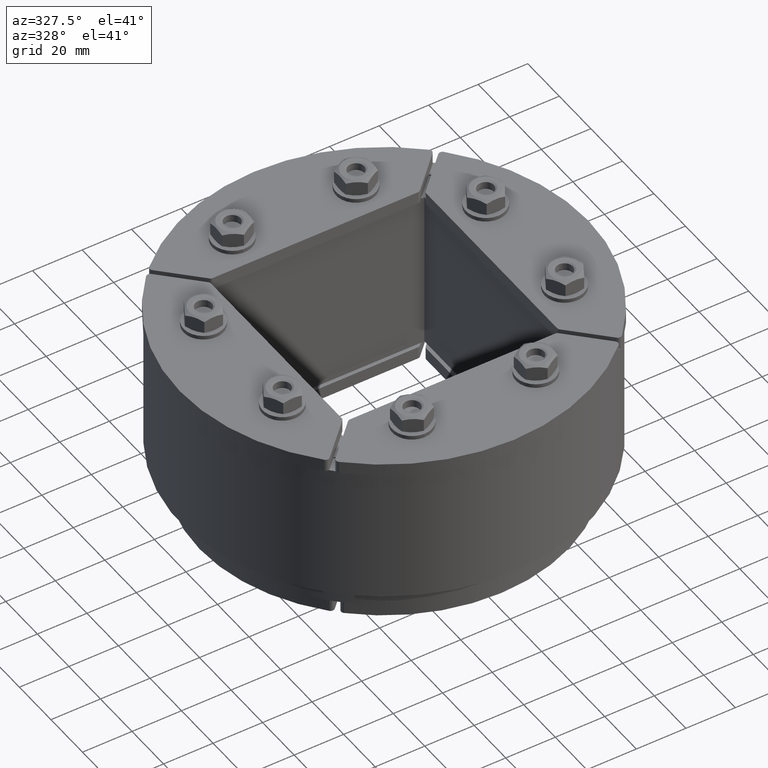
[diagram: clean part render]
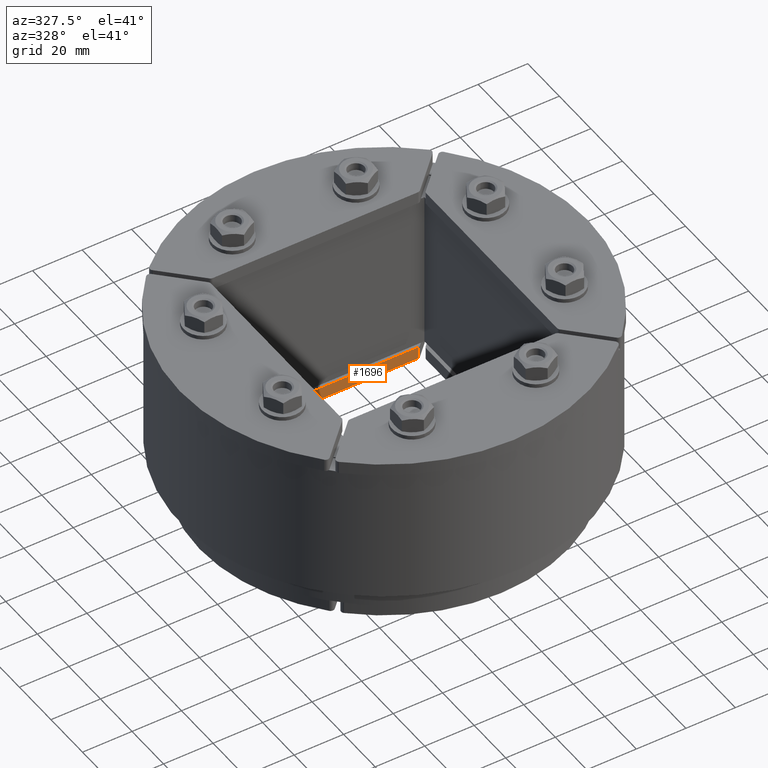
[diagram: same view with one face highlighted and labeled with its STEP entity id]
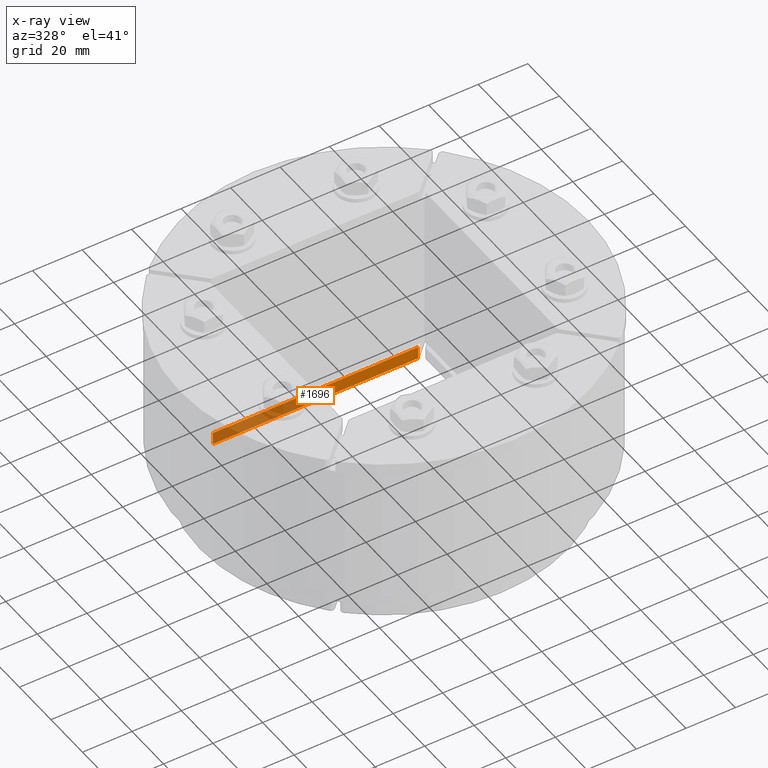
[diagram: x-ray of the same camera — body ghosted, the highlighted face saturated]
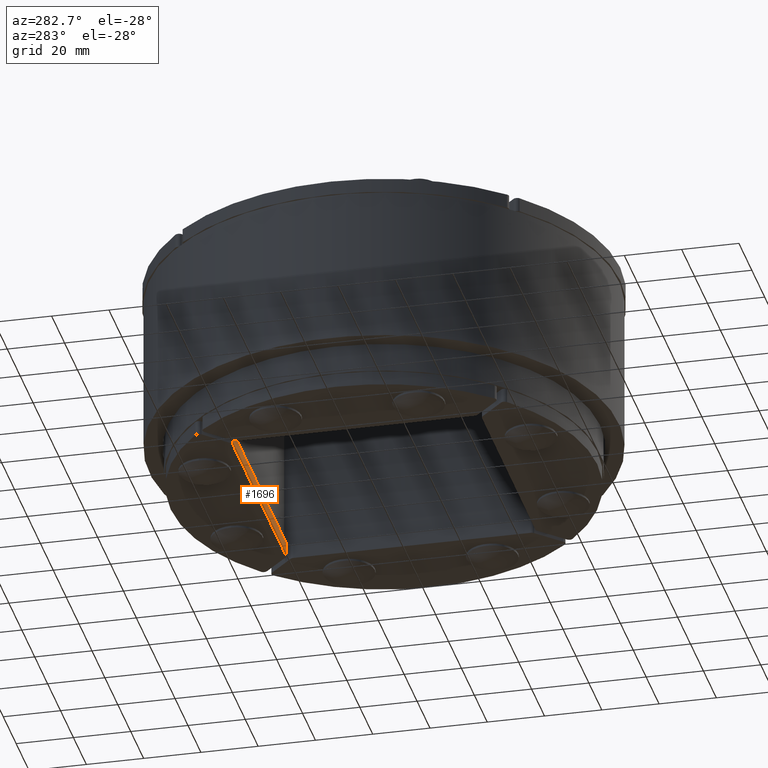
[diagram: same view with one face highlighted and labeled with its STEP entity id]
A machine part, auxiliary view. The second image highlights one B-rep face of the part: STEP entity #1696.
The next image is the same camera in x-ray: the body ghosted, the highlighted face saturated — about 52% of this face is hidden behind the body in this view.
A second angle (auxiliary view) of the same face is appended — the face is thin or edge-on in the first view.
In plain terms, the highlighted planar face has unit normal (0, 1, 0).
Its self-contained STEP definition (entity closure, byte-faithful):
#1456=CARTESIAN_POINT('',(41.464466094067291,43.500000000000007,-5.0));
#1457=VERTEX_POINT('',#1456);
#1465=CARTESIAN_POINT('',(-41.464466094067269,43.500000000000007,-5.0));
#1466=VERTEX_POINT('',#1465);
#1467=CARTESIAN_POINT('',(41.464466094067291,43.500000000000007,-5.0));
#1468=DIRECTION('',(-1.0,0.0,0.0));
#1469=VECTOR('',#1468,82.928932188134553);
#1470=LINE('',#1467,#1469);
#1471=EDGE_CURVE('',#1457,#1466,#1470,.T.);
#1648=CARTESIAN_POINT('',(41.464466094067291,43.500000000000007,0.0));
#1649=VERTEX_POINT('',#1648);
#1657=CARTESIAN_POINT('',(41.464466094067291,43.500000000000007,0.0));
#1658=DIRECTION('',(0.0,0.0,-1.0));
#1659=VECTOR('',#1658,5.0);
#1660=LINE('',#1657,#1659);
#1661=EDGE_CURVE('',#1649,#1457,#1660,.T.);
#1673=CARTESIAN_POINT('',(-43.500000000000007,43.500000000000007,0.0));
#1674=DIRECTION('',(0.0,1.0,0.0));
#1675=DIRECTION('',(1.0,0.0,0.0));
#1676=AXIS2_PLACEMENT_3D('',#1673,#1674,#1675);
#1677=PLANE('',#1676);
#1678=ORIENTED_EDGE('',*,*,#1661,.F.);
#1679=CARTESIAN_POINT('',(-41.464466094067269,43.500000000000007,0.0));
#1680=VERTEX_POINT('',#1679);
#1681=CARTESIAN_POINT('',(-41.464466094067269,43.500000000000007,0.0));
#1682=DIRECTION('',(1.0,0.0,0.0));
#1683=VECTOR('',#1682,82.928932188134553);
#1684=LINE('',#1681,#1683);
#1685=EDGE_CURVE('',#1680,#1649,#1684,.T.);
#1686=ORIENTED_EDGE('',*,*,#1685,.F.);
#1687=CARTESIAN_POINT('',(-41.464466094067269,43.500000000000007,-5.0));
#1688=DIRECTION('',(0.0,0.0,1.0));
#1689=VECTOR('',#1688,5.0);
#1690=LINE('',#1687,#1689);
#1691=EDGE_CURVE('',#1466,#1680,#1690,.T.);
#1692=ORIENTED_EDGE('',*,*,#1691,.F.);
#1693=ORIENTED_EDGE('',*,*,#1471,.F.);
#1694=EDGE_LOOP('',(#1678,#1686,#1692,#1693));
#1695=FACE_OUTER_BOUND('',#1694,.T.);
#1696=ADVANCED_FACE('',(#1695),#1677,.F.);